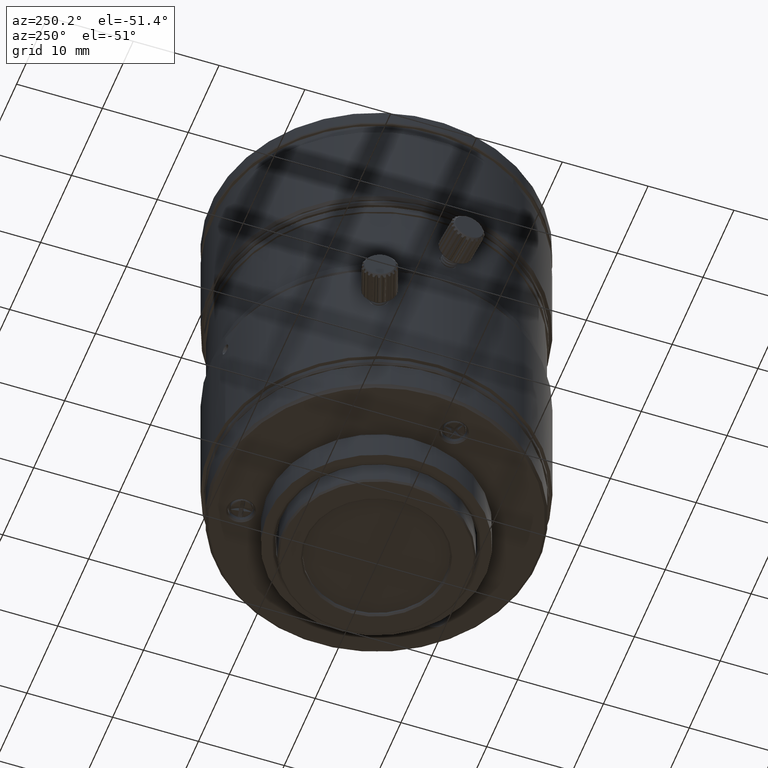
[diagram: clean part render]
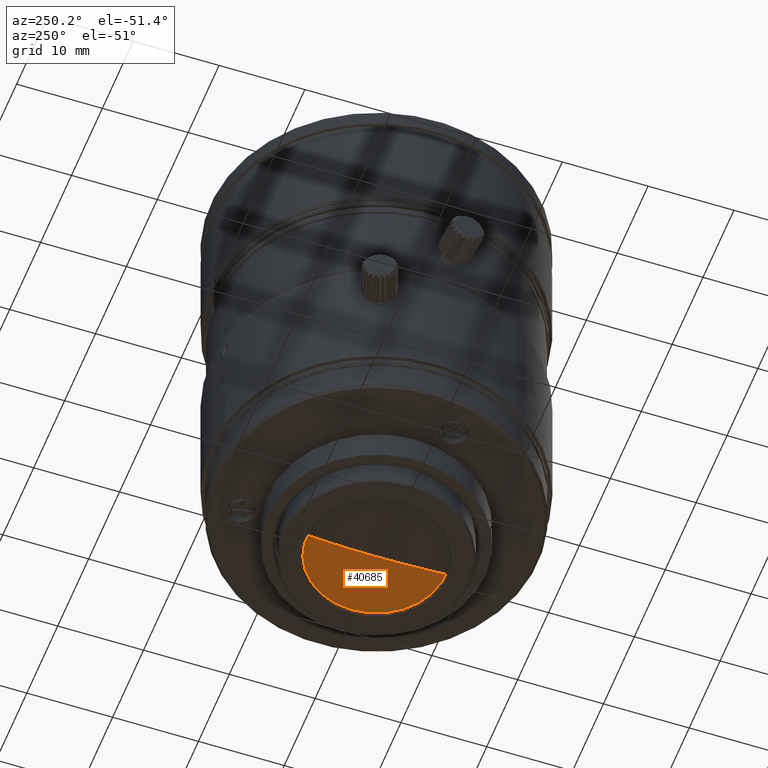
[diagram: same view with one face highlighted and labeled with its STEP entity id]
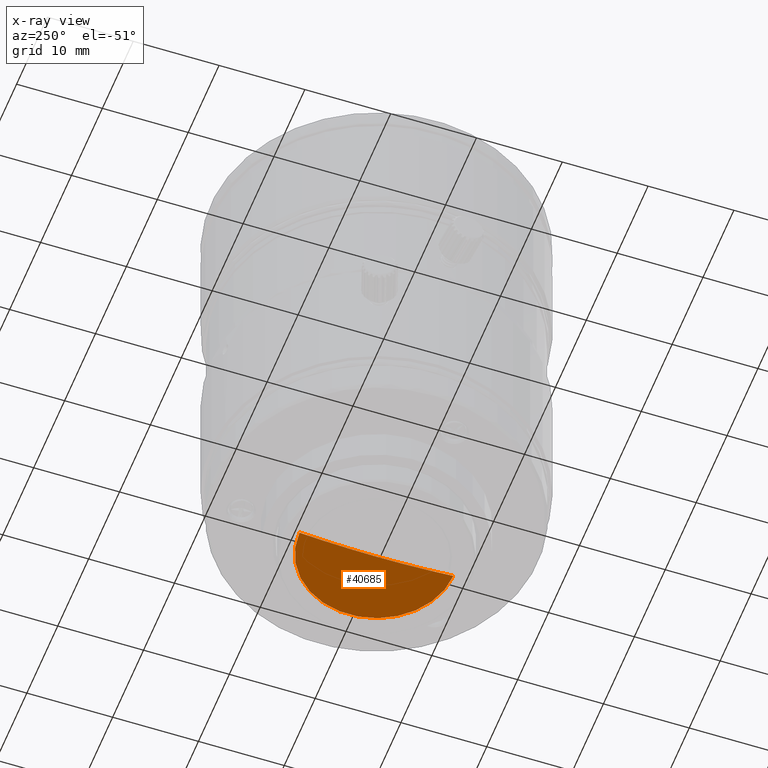
[diagram: x-ray of the same camera — body ghosted, the highlighted face saturated]
A machine part, auxiliary view. The second image highlights one B-rep face of the part: STEP entity #40685.
The next image is the same camera in x-ray: the body ghosted, the highlighted face saturated — about 0% of this face is hidden behind the body in this view.
In plain terms, the highlighted spherical surface has radius 97.614 mm.
Its self-contained STEP definition (entity closure, byte-faithful):
#2817 = AXIS2_PLACEMENT_3D ( 'NONE', #24711, #28984, #25594 ) ;
#4909 = DIRECTION ( 'NONE',  ( 0.000000000000000000, -1.000000000000000000, 0.000000000000000000 ) ) ;
#8299 = SPHERICAL_SURFACE ( 'NONE', #24051, 97.61400000000000432 ) ;
#9178 = ORIENTED_EDGE ( 'NONE', *, *, #10771, .T. ) ;
#10771 = EDGE_CURVE ( 'NONE', #44155, #32308, #26420, .T. ) ;
#12535 = CARTESIAN_POINT ( 'NONE',  ( 0.02438686004548210051, 0.04495256557062320135, 89.31999999999999318 ) ) ;
#14097 = EDGE_CURVE ( 'NONE', #35528, #32308, #18074, .T. ) ;
#14399 = CARTESIAN_POINT ( 'NONE',  ( 0.02438686004548210051, 0.04495256557062320135, 89.31999999999999318 ) ) ;
#14662 = CARTESIAN_POINT ( 'NONE',  ( 0.02438686004548210051, 0.04495256557062320135, 89.31999999999999318 ) ) ;
#16695 = EDGE_CURVE ( 'NONE', #44155, #35528, #40917, .T. ) ;
#18074 = CIRCLE ( 'NONE', #20208, 97.61400000000000432 ) ;
#20208 = AXIS2_PLACEMENT_3D ( 'NONE', #14662, #25240, #35396 ) ;
#22032 = DIRECTION ( 'NONE',  ( -1.000000000000000000, -0.000000000000000000, -0.000000000000000000 ) ) ;
#22635 = CARTESIAN_POINT ( 'NONE',  ( 0.02438686004548100417, 9.013327747781838539, -7.881138072509799919 ) ) ;
#24051 = AXIS2_PLACEMENT_3D ( 'NONE', #14399, #22032, #4909 ) ;
#24521 = FACE_OUTER_BOUND ( 'NONE', #36801, .T. ) ;
#24711 = CARTESIAN_POINT ( 'NONE',  ( 0.02438686004548210051, 0.04495256557062320135, -7.881138072509799919 ) ) ;
#25240 = DIRECTION ( 'NONE',  ( -1.000000000000000000, -1.224646799147353207E-16, -0.000000000000000000 ) ) ;
#25594 = DIRECTION ( 'NONE',  ( 3.771193334283826173E-11, 1.000000000000000000, 0.000000000000000000 ) ) ;
#26055 = DIRECTION ( 'NONE',  ( 0.000000000000000000, 0.000000000000000000, -1.000000000000000000 ) ) ;
#26404 = ORIENTED_EDGE ( 'NONE', *, *, #16695, .F. ) ;
#26420 = CIRCLE ( 'NONE', #32881, 97.61400000000000432 ) ;
#28984 = DIRECTION ( 'NONE',  ( 0.000000000000000000, 0.000000000000000000, 1.000000000000000000 ) ) ;
#32308 = VERTEX_POINT ( 'NONE', #36038 ) ;
#32881 = AXIS2_PLACEMENT_3D ( 'NONE', #12535, #36870, #26055 ) ;
#35396 = DIRECTION ( 'NONE',  ( 1.224550674252943769E-16, -1.000000000000000000, 0.000000000000000000 ) ) ;
#35528 = VERTEX_POINT ( 'NONE', #22635 ) ;
#36038 = CARTESIAN_POINT ( 'NONE',  ( 0.02438686004548210051, 0.04495256557061722696, -8.294000000000009365 ) ) ;
#36120 = ORIENTED_EDGE ( 'NONE', *, *, #14097, .F. ) ;
#36801 = EDGE_LOOP ( 'NONE', ( #36120, #26404, #9178 ) ) ;
#36870 = DIRECTION ( 'NONE',  ( 1.000000000000000000, 0.000000000000000000, 0.000000000000000000 ) ) ;
#39325 = CARTESIAN_POINT ( 'NONE',  ( 0.02438686004548210051, -8.923422616640593219, -7.881138072509799919 ) ) ;
#40685 = ADVANCED_FACE ( 'NONE', ( #24521 ), #8299, .T. ) ;
#40917 = CIRCLE ( 'NONE', #2817, 8.968375182212000141 ) ;
#44155 = VERTEX_POINT ( 'NONE', #39325 ) ;